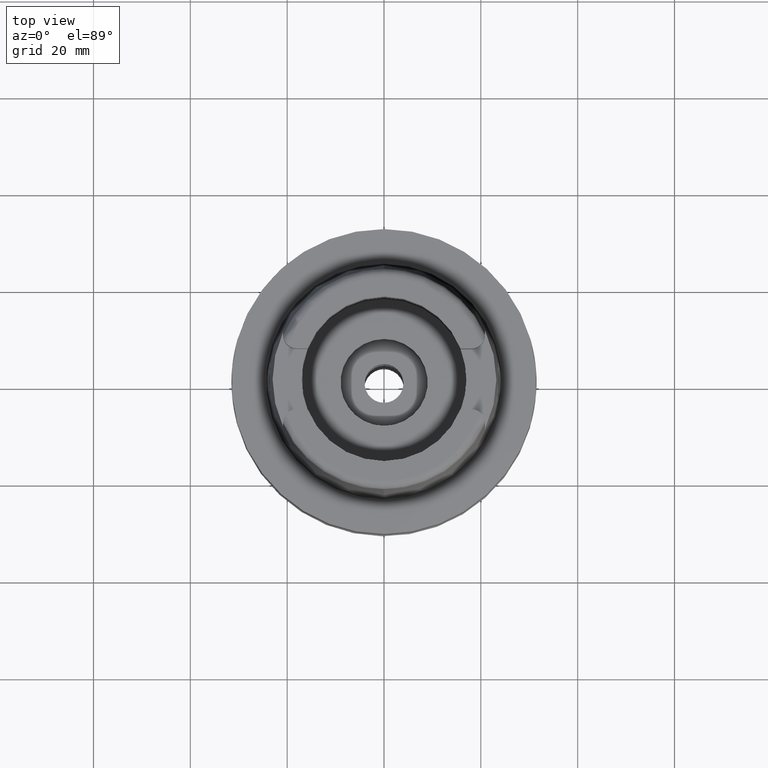
[diagram: clean part render]
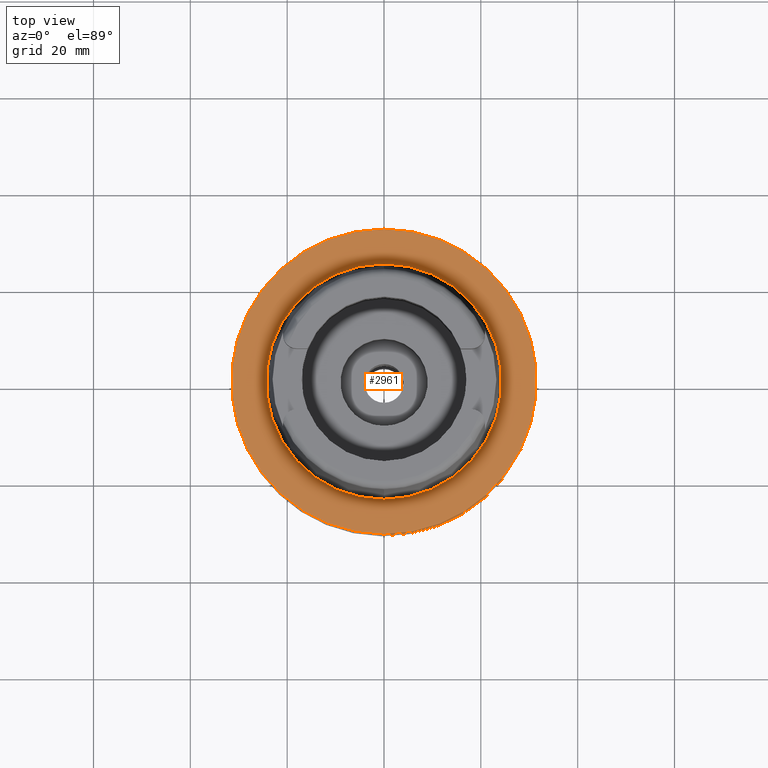
[diagram: same view with one face highlighted and labeled with its STEP entity id]
A machine part, top view. The second image highlights one B-rep face of the part: STEP entity #2961.
In plain terms, the highlighted planar face has unit normal (0, 0, 1).
Its self-contained STEP definition (entity closure, byte-faithful):
#171 = DIRECTION ( 'NONE',  ( 0.0000000000000000000, 0.0000000000000000000, -1.000000000000000000 ) ) ;
#302 = PLANE ( 'NONE',  #3574 ) ;
#458 = DIRECTION ( 'NONE',  ( 0.0000000000000000000, 1.000000000000000000, 0.0000000000000000000 ) ) ;
#704 = CARTESIAN_POINT ( 'NONE',  ( 0.0000000000000000000, 0.0000000000000000000, -1.534772309241999973E-12 ) ) ;
#712 = FACE_BOUND ( 'NONE', #5388, .T. ) ;
#799 = DIRECTION ( 'NONE',  ( 1.000000000000000000, 0.0000000000000000000, 0.0000000000000000000 ) ) ;
#1039 = ORIENTED_EDGE ( 'NONE', *, *, #5158, .F. ) ;
#1600 = CARTESIAN_POINT ( 'NONE',  ( 0.0000000000000000000, 0.0000000000000000000, 0.0000000000000000000 ) ) ;
#1653 = AXIS2_PLACEMENT_3D ( 'NONE', #4896, #4067, #3113 ) ;
#1771 = AXIS2_PLACEMENT_3D ( 'NONE', #3301, #171, #4511 ) ;
#1884 = EDGE_CURVE ( 'NONE', #4883, #3652, #5550, .T. ) ;
#1935 = ORIENTED_EDGE ( 'NONE', *, *, #2224, .F. ) ;
#2224 = EDGE_CURVE ( 'NONE', #3938, #4533, #4329, .T. ) ;
#2254 = CARTESIAN_POINT ( 'NONE',  ( 0.0000000000000000000, 24.31503482328999866, -1.534772309241999973E-12 ) ) ;
#2320 = ORIENTED_EDGE ( 'NONE', *, *, #1884, .F. ) ;
#2857 = AXIS2_PLACEMENT_3D ( 'NONE', #704, #5491, #3354 ) ;
#2909 = AXIS2_PLACEMENT_3D ( 'NONE', #4880, #4423, #458 ) ;
#2928 = DIRECTION ( 'NONE',  ( 0.0000000000000000000, 0.0000000000000000000, 1.000000000000000000 ) ) ;
#2929 = CARTESIAN_POINT ( 'NONE',  ( 0.0000000000000000000, -31.50000000000000000, 4.263256414560999963E-14 ) ) ;
#2961 = ADVANCED_FACE ( 'NONE', ( #5282, #712 ), #302, .T. ) ;
#3113 = DIRECTION ( 'NONE',  ( 0.0000000000000000000, -1.000000000000000000, 0.0000000000000000000 ) ) ;
#3301 = CARTESIAN_POINT ( 'NONE',  ( 0.0000000000000000000, 0.0000000000000000000, 4.263256414560999963E-14 ) ) ;
#3354 = DIRECTION ( 'NONE',  ( 0.0000000000000000000, 1.000000000000000000, 0.0000000000000000000 ) ) ;
#3424 = EDGE_LOOP ( 'NONE', ( #4589, #1935 ) ) ;
#3574 = AXIS2_PLACEMENT_3D ( 'NONE', #1600, #2928, #799 ) ;
#3652 = VERTEX_POINT ( 'NONE', #3851 ) ;
#3727 = CIRCLE ( 'NONE', #1653, 24.31503482328999866 ) ;
#3851 = CARTESIAN_POINT ( 'NONE',  ( 0.0000000000000000000, -24.31503482328999866, -8.348877145181000479E-13 ) ) ;
#3938 = VERTEX_POINT ( 'NONE', #2929 ) ;
#4057 = CARTESIAN_POINT ( 'NONE',  ( 0.0000000000000000000, 31.50000000000000000, 6.631732200427999741E-14 ) ) ;
#4067 = DIRECTION ( 'NONE',  ( 0.0000000000000000000, 0.0000000000000000000, 1.000000000000000000 ) ) ;
#4329 = CIRCLE ( 'NONE', #1771, 31.50000000000000000 ) ;
#4423 = DIRECTION ( 'NONE',  ( 0.0000000000000000000, 0.0000000000000000000, -1.000000000000000000 ) ) ;
#4465 = CIRCLE ( 'NONE', #2909, 31.50000000000000000 ) ;
#4511 = DIRECTION ( 'NONE',  ( 0.0000000000000000000, -1.000000000000000000, 0.0000000000000000000 ) ) ;
#4533 = VERTEX_POINT ( 'NONE', #4057 ) ;
#4589 = ORIENTED_EDGE ( 'NONE', *, *, #5026, .F. ) ;
#4880 = CARTESIAN_POINT ( 'NONE',  ( 0.0000000000000000000, 0.0000000000000000000, 4.263256414560999963E-14 ) ) ;
#4883 = VERTEX_POINT ( 'NONE', #2254 ) ;
#4896 = CARTESIAN_POINT ( 'NONE',  ( 0.0000000000000000000, 0.0000000000000000000, -1.534772309241999973E-12 ) ) ;
#5026 = EDGE_CURVE ( 'NONE', #4533, #3938, #4465, .T. ) ;
#5158 = EDGE_CURVE ( 'NONE', #3652, #4883, #3727, .T. ) ;
#5282 = FACE_OUTER_BOUND ( 'NONE', #3424, .T. ) ;
#5388 = EDGE_LOOP ( 'NONE', ( #2320, #1039 ) ) ;
#5491 = DIRECTION ( 'NONE',  ( 0.0000000000000000000, 0.0000000000000000000, 1.000000000000000000 ) ) ;
#5550 = CIRCLE ( 'NONE', #2857, 24.31503482328999866 ) ;